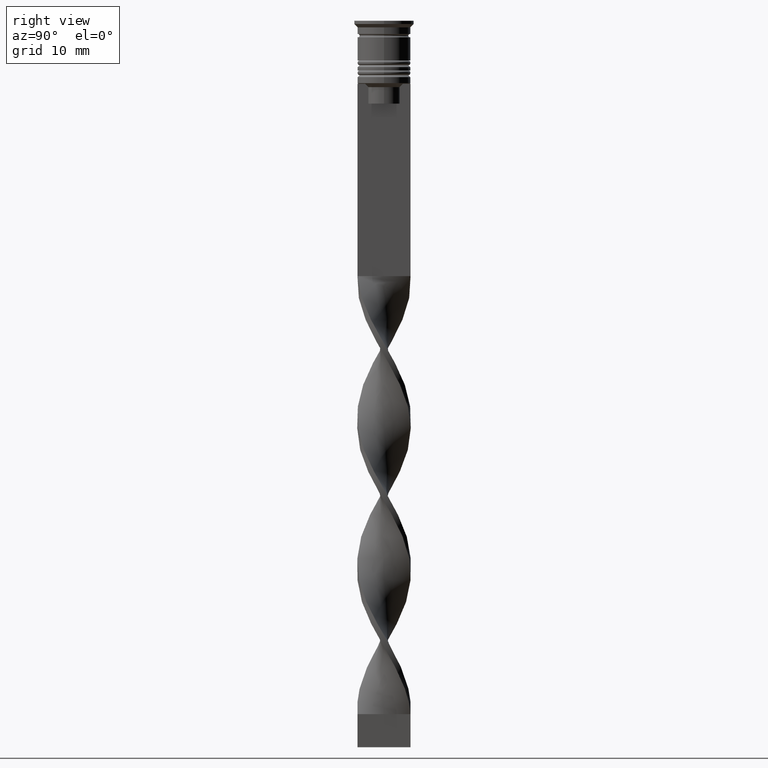
[diagram: clean part render]
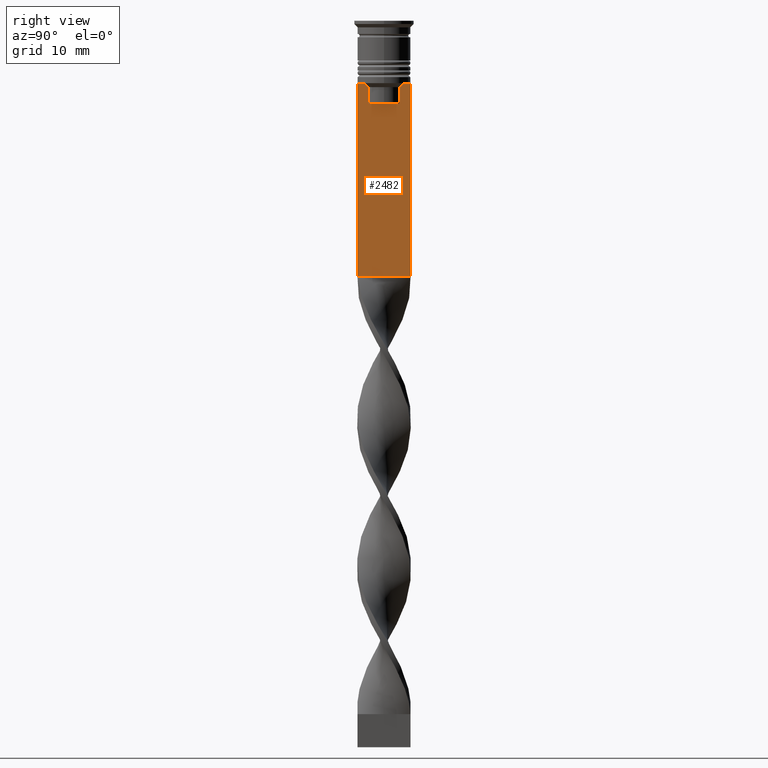
[diagram: same view with one face highlighted and labeled with its STEP entity id]
A machine part, right view. The second image highlights one B-rep face of the part: STEP entity #2482.
In plain terms, the highlighted planar face has unit normal (-1, 0, 0).
Its self-contained STEP definition (entity closure, byte-faithful):
#27 = ORIENTED_EDGE ( 'NONE', *, *, #3164, .F. ) ;
#101 = VERTEX_POINT ( 'NONE', #1059 ) ;
#115 = CARTESIAN_POINT ( 'NONE',  ( 0.5000000000000000000, -4.000000000000000000, -38.50000000000000000 ) ) ;
#138 = CARTESIAN_POINT ( 'NONE',  ( 0.5000000000000000000, -2.347338918861097135, -10.00000000000000000 ) ) ;
#228 = EDGE_CURVE ( 'NONE', #2879, #2138, #2493, .T. ) ;
#258 = ORIENTED_EDGE ( 'NONE', *, *, #522, .T. ) ;
#266 = DIRECTION ( 'NONE',  ( 0.000000000000000000, -1.000000000000000000, 0.000000000000000000 ) ) ;
#288 = DIRECTION ( 'NONE',  ( 0.000000000000000000, 0.000000000000000000, -1.000000000000000000 ) ) ;
#306 = EDGE_CURVE ( 'NONE', #101, #2731, #726, .T. ) ;
#307 = DIRECTION ( 'NONE',  ( -0.000000000000000000, -0.000000000000000000, 1.000000000000000000 ) ) ;
#329 = EDGE_LOOP ( 'NONE', ( #2209, #537, #1616, #2121, #1302, #258, #1246, #455, #3509, #631, #27, #3216 ) ) ;
#451 = LINE ( 'NONE', #1015, #3233 ) ;
#455 = ORIENTED_EDGE ( 'NONE', *, *, #1372, .T. ) ;
#481 = VERTEX_POINT ( 'NONE', #2579 ) ;
#522 = EDGE_CURVE ( 'NONE', #2066, #2182, #1585, .T. ) ;
#525 = CARTESIAN_POINT ( 'NONE',  ( 0.5000000000000000000, -4.000000000000000000, -9.500000000000000000 ) ) ;
#537 = ORIENTED_EDGE ( 'NONE', *, *, #3598, .T. ) ;
#544 = CARTESIAN_POINT ( 'NONE',  ( 0.5000000000000000000, 2.399999999999996803, -12.50000000000000000 ) ) ;
#631 = ORIENTED_EDGE ( 'NONE', *, *, #2220, .T. ) ;
#660 = CARTESIAN_POINT ( 'NONE',  ( 0.5000000000000000000, -3.867815921162741422, -9.500000000000000000 ) ) ;
#694 = CARTESIAN_POINT ( 'NONE',  ( 0.5000000000000000000, -2.856571371417138572, -9.500000000000000000 ) ) ;
#726 = LINE ( 'NONE', #1945, #2709 ) ;
#768 = CARTESIAN_POINT ( 'NONE',  ( 0.5000000000000000000, 4.000000000000000000, -38.50000000000000000 ) ) ;
#817 = CARTESIAN_POINT ( 'NONE',  ( 0.5000000000000000000, -4.000000000000000000, -9.500000000000000000 ) ) ;
#847 = VECTOR ( 'NONE', #3270, 1000.000000000000000 ) ;
#852 = DIRECTION ( 'NONE',  ( 0.000000000000000000, -1.000000000000000000, 0.000000000000000000 ) ) ;
#961 = VECTOR ( 'NONE', #307, 1000.000000000000000 ) ;
#964 = DIRECTION ( 'NONE',  ( 0.000000000000000000, 0.000000000000000000, -1.000000000000000000 ) ) ;
#1015 = CARTESIAN_POINT ( 'NONE',  ( 0.5000000000000000000, -4.000000000000000000, -38.50000000000000000 ) ) ;
#1053 = CARTESIAN_POINT ( 'NONE',  ( 0.5000000000000000000, 4.000000000000000000, -9.500000000000000000 ) ) ;
#1059 = CARTESIAN_POINT ( 'NONE',  ( 0.5000000000000000000, 3.867815921162741422, -9.500000000000000000 ) ) ;
#1062 = VERTEX_POINT ( 'NONE', #1474 ) ;
#1101 = FACE_OUTER_BOUND ( 'NONE', #329, .T. ) ;
#1246 = ORIENTED_EDGE ( 'NONE', *, *, #1904, .T. ) ;
#1302 = ORIENTED_EDGE ( 'NONE', *, *, #1582, .T. ) ;
#1351 = LINE ( 'NONE', #525, #2778 ) ;
#1367 = EDGE_CURVE ( 'NONE', #3390, #1062, #2171, .T. ) ;
#1372 = EDGE_CURVE ( 'NONE', #2050, #2879, #1351, .T. ) ;
#1418 = LINE ( 'NONE', #817, #3592 ) ;
#1439 = CARTESIAN_POINT ( 'NONE',  ( 0.5000000000000000000, -2.347338918861097135, 0.000000000000000000 ) ) ;
#1460 = DIRECTION ( 'NONE',  ( 0.000000000000000000, -1.000000000000000000, 0.000000000000000000 ) ) ;
#1474 = CARTESIAN_POINT ( 'NONE',  ( 0.5000000000000000000, -2.347338918861097135, -12.50000000000000000 ) ) ;
#1476 = DIRECTION ( 'NONE',  ( 0.000000000000000000, -1.000000000000000000, 0.000000000000000000 ) ) ;
#1486 = VECTOR ( 'NONE', #1476, 1000.000000000000000 ) ;
#1514 = LINE ( 'NONE', #2629, #1486 ) ;
#1550 = CARTESIAN_POINT ( 'NONE',  ( 0.5000000000000000000, 2.856571371417138572, -9.500000000000000000 ) ) ;
#1570 = CARTESIAN_POINT ( 'NONE',  ( 0.5000000000000000000, -2.517408374291112416, -9.833662228483172285 ) ) ;
#1582 = EDGE_CURVE ( 'NONE', #1062, #2066, #2286, .T. ) ;
#1585 = B_SPLINE_CURVE_WITH_KNOTS ( 'NONE', 3,
 ( #138, #1570, #3207, #694 ),
 .UNSPECIFIED., .F., .F.,
 ( 4, 4 ),
 ( 0.01178336557230038467, 0.01249758354768160280 ),
 .UNSPECIFIED. ) ;
#1597 = CARTESIAN_POINT ( 'NONE',  ( 0.5000000000000000000, 2.856571371417138572, -9.500000000000000000 ) ) ;
#1616 = ORIENTED_EDGE ( 'NONE', *, *, #2053, .T. ) ;
#1713 = B_SPLINE_CURVE_WITH_KNOTS ( 'NONE', 3,
 ( #1550, #2935, #2131, #1830 ),
 .UNSPECIFIED., .F., .F.,
 ( 4, 4 ),
 ( 0.004956812174141191595, 0.005670477137898149653 ),
 .UNSPECIFIED. ) ;
#1795 = CARTESIAN_POINT ( 'NONE',  ( 0.5000000000000000000, 2.347338918861097135, -12.50000000000000000 ) ) ;
#1830 = CARTESIAN_POINT ( 'NONE',  ( 0.5000000000000000000, 2.347338918861097135, -10.00000000000000000 ) ) ;
#1858 = CARTESIAN_POINT ( 'NONE',  ( 0.5000000000000000000, -4.000000000000000000, -9.500000000000000000 ) ) ;
#1866 = CARTESIAN_POINT ( 'NONE',  ( 0.5000000000000000000, -2.856571371417138572, -9.500000000000000000 ) ) ;
#1904 = EDGE_CURVE ( 'NONE', #2182, #2050, #1418, .T. ) ;
#1945 = CARTESIAN_POINT ( 'NONE',  ( 0.5000000000000000000, -4.000000000000000000, -9.500000000000000000 ) ) ;
#2016 = CARTESIAN_POINT ( 'NONE',  ( 0.5000000000000000000, -2.347338918861097135, -10.00000000000000000 ) ) ;
#2050 = VERTEX_POINT ( 'NONE', #660 ) ;
#2053 = EDGE_CURVE ( 'NONE', #481, #3390, #2352, .T. ) ;
#2066 = VERTEX_POINT ( 'NONE', #2016 ) ;
#2121 = ORIENTED_EDGE ( 'NONE', *, *, #1367, .T. ) ;
#2131 = CARTESIAN_POINT ( 'NONE',  ( 0.5000000000000000000, 2.517407211010872281, -9.833663366238582171 ) ) ;
#2138 = VERTEX_POINT ( 'NONE', #115 ) ;
#2171 = LINE ( 'NONE', #544, #847 ) ;
#2182 = VERTEX_POINT ( 'NONE', #1866 ) ;
#2209 = ORIENTED_EDGE ( 'NONE', *, *, #306, .T. ) ;
#2216 = PLANE ( 'NONE',  #3533 ) ;
#2218 = VERTEX_POINT ( 'NONE', #768 ) ;
#2220 = EDGE_CURVE ( 'NONE', #2138, #2218, #451, .T. ) ;
#2232 = CARTESIAN_POINT ( 'NONE',  ( 0.5000000000000000000, -4.000000000000000000, -1.437742251701450202 ) ) ;
#2286 = LINE ( 'NONE', #1439, #961 ) ;
#2352 = LINE ( 'NONE', #3173, #3469 ) ;
#2408 = VECTOR ( 'NONE', #3603, 1000.000000000000000 ) ;
#2482 = ADVANCED_FACE ( 'NONE', ( #1101 ), #2216, .F. ) ;
#2493 = LINE ( 'NONE', #3300, #2408 ) ;
#2562 = VECTOR ( 'NONE', #288, 1000.000000000000000 ) ;
#2579 = CARTESIAN_POINT ( 'NONE',  ( 0.5000000000000000000, 2.347338918861097135, -10.00000000000000000 ) ) ;
#2629 = CARTESIAN_POINT ( 'NONE',  ( 0.5000000000000000000, -4.000000000000000000, -9.500000000000000000 ) ) ;
#2709 = VECTOR ( 'NONE', #1460, 1000.000000000000000 ) ;
#2731 = VERTEX_POINT ( 'NONE', #1597 ) ;
#2778 = VECTOR ( 'NONE', #266, 1000.000000000000000 ) ;
#2816 = CARTESIAN_POINT ( 'NONE',  ( 0.5000000000000000000, 4.000000000000000000, -1.437742251701450202 ) ) ;
#2879 = VERTEX_POINT ( 'NONE', #1858 ) ;
#2935 = CARTESIAN_POINT ( 'NONE',  ( 0.5000000000000000000, 2.687094542495898075, -9.666938847453439010 ) ) ;
#3011 = DIRECTION ( 'NONE',  ( 0.000000000000000000, 1.000000000000000000, 0.000000000000000000 ) ) ;
#3031 = DIRECTION ( 'NONE',  ( -1.000000000000000000, 0.000000000000000000, 0.000000000000000000 ) ) ;
#3083 = DIRECTION ( 'NONE',  ( 0.000000000000000000, 0.000000000000000000, 1.000000000000000000 ) ) ;
#3093 = LINE ( 'NONE', #2816, #2562 ) ;
#3164 = EDGE_CURVE ( 'NONE', #3553, #2218, #3093, .T. ) ;
#3173 = CARTESIAN_POINT ( 'NONE',  ( 0.5000000000000000000, 2.347338918861097135, 0.000000000000000000 ) ) ;
#3207 = CARTESIAN_POINT ( 'NONE',  ( 0.5000000000000000000, -2.687095498514037839, -9.666937905752043037 ) ) ;
#3216 = ORIENTED_EDGE ( 'NONE', *, *, #3499, .T. ) ;
#3233 = VECTOR ( 'NONE', #3011, 1000.000000000000000 ) ;
#3270 = DIRECTION ( 'NONE',  ( 0.000000000000000000, -1.000000000000000000, 0.000000000000000000 ) ) ;
#3300 = CARTESIAN_POINT ( 'NONE',  ( 0.5000000000000000000, -4.000000000000000000, -1.437742251701450202 ) ) ;
#3390 = VERTEX_POINT ( 'NONE', #1795 ) ;
#3469 = VECTOR ( 'NONE', #964, 1000.000000000000000 ) ;
#3499 = EDGE_CURVE ( 'NONE', #3553, #101, #1514, .T. ) ;
#3509 = ORIENTED_EDGE ( 'NONE', *, *, #228, .T. ) ;
#3533 = AXIS2_PLACEMENT_3D ( 'NONE', #2232, #3031, #3083 ) ;
#3553 = VERTEX_POINT ( 'NONE', #1053 ) ;
#3592 = VECTOR ( 'NONE', #852, 1000.000000000000000 ) ;
#3598 = EDGE_CURVE ( 'NONE', #2731, #481, #1713, .T. ) ;
#3603 = DIRECTION ( 'NONE',  ( 0.000000000000000000, 0.000000000000000000, -1.000000000000000000 ) ) ;